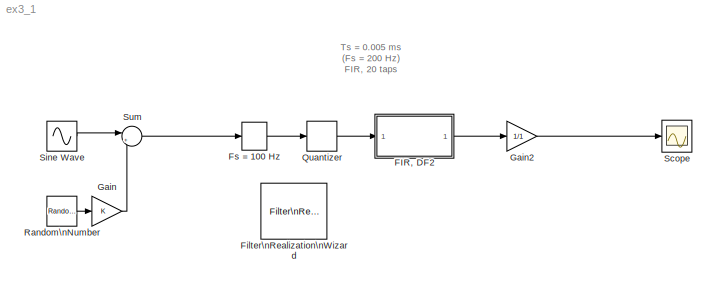
MODEL ex3_1
KIND model
CONFIG InitFcn = Ts = 0.1;	\ndisp(['Setting sample time to ' num2str(Ts) ' seconds'])	\ndisp('To change this, go to: File -> Model Properties -> Callbacks')	\ndisp('and change the Model initialization function')
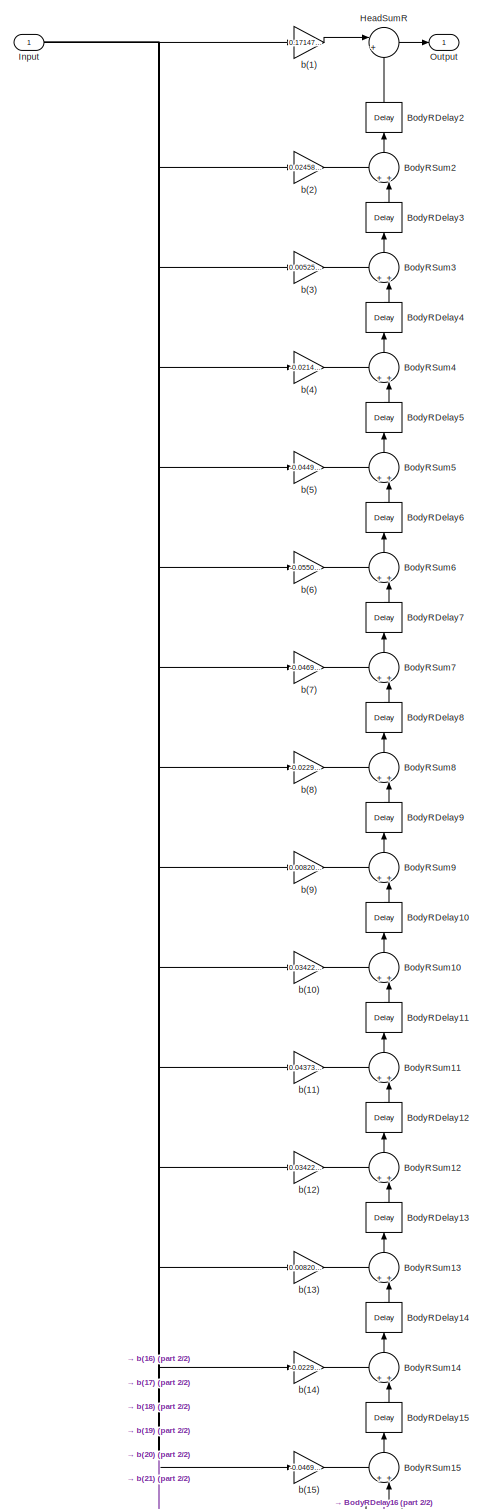
[diagram: FIR, DF2 - part 1/2, full width, middle band]
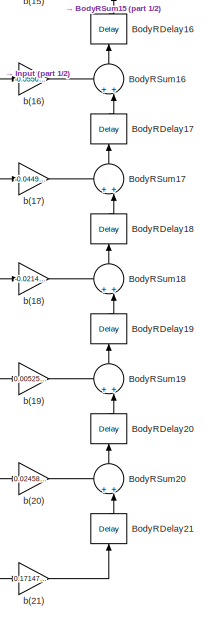
[diagram: FIR, DF2 - part 2/2, bottom right region]
BLOCK [SubSystem] FIR, DF2
  Ports = [1, 1]
  RequestExecContextInheritance = off
  SID = 1
  Tag = FilterWizardSubSystem
BLOCK [Reference] FIR, DF2/BodyRDelay10  REF=dspsigops/Delay
  Ports = [1, 1]
  SID = 3
  SourceBlock = dspsigops/Delay
  SourceProductBaseCode = DS
  SourceProductName = DSP System Toolbox
  SourceType = Delay
  delay = 1
  dif_ic_for_ch = off
  dif_ic_for_dly = off
  dly_unit = Samples
  ic = 0
  ic_detail = off
  reset_popup = None
BLOCK [Reference] FIR, DF2/BodyRDelay11  REF=dspsigops/Delay
  Ports = [1, 1]
  SID = 4
  SourceBlock = dspsigops/Delay
  SourceProductBaseCode = DS
  SourceProductName = DSP System Toolbox
  SourceType = Delay
  delay = 1
  dif_ic_for_ch = off
  dif_ic_for_dly = off
  dly_unit = Samples
  ic = 0
  ic_detail = off
  reset_popup = None
BLOCK [Reference] FIR, DF2/BodyRDelay12  REF=dspsigops/Delay
  Ports = [1, 1]
  SID = 5
  SourceBlock = dspsigops/Delay
  SourceProductBaseCode = DS
  SourceProductName = DSP System Toolbox
  SourceType = Delay
  delay = 1
  dif_ic_for_ch = off
  dif_ic_for_dly = off
  dly_unit = Samples
  ic = 0
  ic_detail = off
  reset_popup = None
BLOCK [Reference] FIR, DF2/BodyRDelay13  REF=dspsigops/Delay
  Ports = [1, 1]
  SID = 6
  SourceBlock = dspsigops/Delay
  SourceProductBaseCode = DS
  SourceProductName = DSP System Toolbox
  SourceType = Delay
  delay = 1
  dif_ic_for_ch = off
  dif_ic_for_dly = off
  dly_unit = Samples
  ic = 0
  ic_detail = off
  reset_popup = None
BLOCK [Reference] FIR, DF2/BodyRDelay14  REF=dspsigops/Delay
  Ports = [1, 1]
  SID = 7
  SourceBlock = dspsigops/Delay
  SourceProductBaseCode = DS
  SourceProductName = DSP System Toolbox
  SourceType = Delay
  delay = 1
  dif_ic_for_ch = off
  dif_ic_for_dly = off
  dly_unit = Samples
  ic = 0
  ic_detail = off
  reset_popup = None
BLOCK [Reference] FIR, DF2/BodyRDelay15  REF=dspsigops/Delay
  Ports = [1, 1]
  SID = 8
  SourceBlock = dspsigops/Delay
  SourceProductBaseCode = DS
  SourceProductName = DSP System Toolbox
  SourceType = Delay
  delay = 1
  dif_ic_for_ch = off
  dif_ic_for_dly = off
  dly_unit = Samples
  ic = 0
  ic_detail = off
  reset_popup = None
BLOCK [Reference] FIR, DF2/BodyRDelay16  REF=dspsigops/Delay
  Ports = [1, 1]
  SID = 9
  SourceBlock = dspsigops/Delay
  SourceProductBaseCode = DS
  SourceProductName = DSP System Toolbox
  SourceType = Delay
  delay = 1
  dif_ic_for_ch = off
  dif_ic_for_dly = off
  dly_unit = Samples
  ic = 0
  ic_detail = off
  reset_popup = None
BLOCK [Reference] FIR, DF2/BodyRDelay17  REF=dspsigops/Delay
  Ports = [1, 1]
  SID = 10
  SourceBlock = dspsigops/Delay
  SourceProductBaseCode = DS
  SourceProductName = DSP System Toolbox
  SourceType = Delay
  delay = 1
  dif_ic_for_ch = off
  dif_ic_for_dly = off
  dly_unit = Samples
  ic = 0
  ic_detail = off
  reset_popup = None
BLOCK [Reference] FIR, DF2/BodyRDelay18  REF=dspsigops/Delay
  Ports = [1, 1]
  SID = 11
  SourceBlock = dspsigops/Delay
  SourceProductBaseCode = DS
  SourceProductName = DSP System Toolbox
  SourceType = Delay
  delay = 1
  dif_ic_for_ch = off
  dif_ic_for_dly = off
  dly_unit = Samples
  ic = 0
  ic_detail = off
  reset_popup = None
BLOCK [Reference] FIR, DF2/BodyRDelay19  REF=dspsigops/Delay
  Ports = [1, 1]
  SID = 12
  SourceBlock = dspsigops/Delay
  SourceProductBaseCode = DS
  SourceProductName = DSP System Toolbox
  SourceType = Delay
  delay = 1
  dif_ic_for_ch = off
  dif_ic_for_dly = off
  dly_unit = Samples
  ic = 0
  ic_detail = off
  reset_popup = None
BLOCK [Reference] FIR, DF2/BodyRDelay2  REF=dspsigops/Delay
  Ports = [1, 1]
  SID = 13
  SourceBlock = dspsigops/Delay
  SourceProductBaseCode = DS
  SourceProductName = DSP System Toolbox
  SourceType = Delay
  delay = 1
  dif_ic_for_ch = off
  dif_ic_for_dly = off
  dly_unit = Samples
  ic = 0
  ic_detail = off
  reset_popup = None
BLOCK [Reference] FIR, DF2/BodyRDelay20  REF=dspsigops/Delay
  Ports = [1, 1]
  SID = 14
  SourceBlock = dspsigops/Delay
  SourceProductBaseCode = DS
  SourceProductName = DSP System Toolbox
  SourceType = Delay
  delay = 1
  dif_ic_for_ch = off
  dif_ic_for_dly = off
  dly_unit = Samples
  ic = 0
  ic_detail = off
  reset_popup = None
BLOCK [Reference] FIR, DF2/BodyRDelay21  REF=dspsigops/Delay
  Ports = [1, 1]
  SID = 15
  SourceBlock = dspsigops/Delay
  SourceProductBaseCode = DS
  SourceProductName = DSP System Toolbox
  SourceType = Delay
  delay = 1
  dif_ic_for_ch = off
  dif_ic_for_dly = off
  dly_unit = Samples
  ic = 0
  ic_detail = off
  reset_popup = None
BLOCK [Reference] FIR, DF2/BodyRDelay3  REF=dspsigops/Delay
  Ports = [1, 1]
  SID = 16
  SourceBlock = dspsigops/Delay
  SourceProductBaseCode = DS
  SourceProductName = DSP System Toolbox
  SourceType = Delay
  delay = 1
  dif_ic_for_ch = off
  dif_ic_for_dly = off
  dly_unit = Samples
  ic = 0
  ic_detail = off
  reset_popup = None
BLOCK [Reference] FIR, DF2/BodyRDelay4  REF=dspsigops/Delay
  Ports = [1, 1]
  SID = 17
  SourceBlock = dspsigops/Delay
  SourceProductBaseCode = DS
  SourceProductName = DSP System Toolbox
  SourceType = Delay
  delay = 1
  dif_ic_for_ch = off
  dif_ic_for_dly = off
  dly_unit = Samples
  ic = 0
  ic_detail = off
  reset_popup = None
BLOCK [Reference] FIR, DF2/BodyRDelay5  REF=dspsigops/Delay
  Ports = [1, 1]
  SID = 18
  SourceBlock = dspsigops/Delay
  SourceProductBaseCode = DS
  SourceProductName = DSP System Toolbox
  SourceType = Delay
  delay = 1
  dif_ic_for_ch = off
  dif_ic_for_dly = off
  dly_unit = Samples
  ic = 0
  ic_detail = off
  reset_popup = None
BLOCK [Reference] FIR, DF2/BodyRDelay6  REF=dspsigops/Delay
  Ports = [1, 1]
  SID = 19
  SourceBlock = dspsigops/Delay
  SourceProductBaseCode = DS
  SourceProductName = DSP System Toolbox
  SourceType = Delay
  delay = 1
  dif_ic_for_ch = off
  dif_ic_for_dly = off
  dly_unit = Samples
  ic = 0
  ic_detail = off
  reset_popup = None
BLOCK [Reference] FIR, DF2/BodyRDelay7  REF=dspsigops/Delay
  Ports = [1, 1]
  SID = 20
  SourceBlock = dspsigops/Delay
  SourceProductBaseCode = DS
  SourceProductName = DSP System Toolbox
  SourceType = Delay
  delay = 1
  dif_ic_for_ch = off
  dif_ic_for_dly = off
  dly_unit = Samples
  ic = 0
  ic_detail = off
  reset_popup = None
BLOCK [Reference] FIR, DF2/BodyRDelay8  REF=dspsigops/Delay
  Ports = [1, 1]
  SID = 21
  SourceBlock = dspsigops/Delay
  SourceProductBaseCode = DS
  SourceProductName = DSP System Toolbox
  SourceType = Delay
  delay = 1
  dif_ic_for_ch = off
  dif_ic_for_dly = off
  dly_unit = Samples
  ic = 0
  ic_detail = off
  reset_popup = None
BLOCK [Reference] FIR, DF2/BodyRDelay9  REF=dspsigops/Delay
  Ports = [1, 1]
  SID = 22
  SourceBlock = dspsigops/Delay
  SourceProductBaseCode = DS
  SourceProductName = DSP System Toolbox
  SourceType = Delay
  delay = 1
  dif_ic_for_ch = off
  dif_ic_for_dly = off
  dly_unit = Samples
  ic = 0
  ic_detail = off
  reset_popup = None
BLOCK [Sum] FIR, DF2/BodyRSum10
  IconShape = round
  Inputs = ++|
  Ports = [2, 1]
  SID = 23
BLOCK [Sum] FIR, DF2/BodyRSum11
  IconShape = round
  Inputs = ++|
  Ports = [2, 1]
  SID = 24
BLOCK [Sum] FIR, DF2/BodyRSum12
  IconShape = round
  Inputs = ++|
  Ports = [2, 1]
  SID = 25
BLOCK [Sum] FIR, DF2/BodyRSum13
  IconShape = round
  Inputs = ++|
  Ports = [2, 1]
  SID = 26
BLOCK [Sum] FIR, DF2/BodyRSum14
  IconShape = round
  Inputs = ++|
  Ports = [2, 1]
  SID = 27
BLOCK [Sum] FIR, DF2/BodyRSum15
  IconShape = round
  Inputs = ++|
  Ports = [2, 1]
  SID = 28
BLOCK [Sum] FIR, DF2/BodyRSum16
  IconShape = round
  Inputs = ++|
  Ports = [2, 1]
  SID = 29
BLOCK [Sum] FIR, DF2/BodyRSum17
  IconShape = round
  Inputs = ++|
  Ports = [2, 1]
  SID = 30
BLOCK [Sum] FIR, DF2/BodyRSum18
  IconShape = round
  Inputs = ++|
  Ports = [2, 1]
  SID = 31
BLOCK [Sum] FIR, DF2/BodyRSum19
  IconShape = round
  Inputs = ++|
  Ports = [2, 1]
  SID = 32
BLOCK [Sum] FIR, DF2/BodyRSum2
  IconShape = round
  Inputs = ++|
  Ports = [2, 1]
  SID = 33
BLOCK [Sum] FIR, DF2/BodyRSum20
  IconShape = round
  Inputs = ++|
  Ports = [2, 1]
  SID = 34
BLOCK [Sum] FIR, DF2/BodyRSum3
  IconShape = round
  Inputs = ++|
  Ports = [2, 1]
  SID = 35
BLOCK [Sum] FIR, DF2/BodyRSum4
  IconShape = round
  Inputs = ++|
  Ports = [2, 1]
  SID = 36
BLOCK [Sum] FIR, DF2/BodyRSum5
  IconShape = round
  Inputs = ++|
  Ports = [2, 1]
  SID = 37
BLOCK [Sum] FIR, DF2/BodyRSum6
  IconShape = round
  Inputs = ++|
  Ports = [2, 1]
  SID = 38
BLOCK [Sum] FIR, DF2/BodyRSum7
  IconShape = round
  Inputs = ++|
  Ports = [2, 1]
  SID = 39
BLOCK [Sum] FIR, DF2/BodyRSum8
  IconShape = round
  Inputs = ++|
  Ports = [2, 1]
  SID = 40
BLOCK [Sum] FIR, DF2/BodyRSum9
  IconShape = round
  Inputs = ++|
  Ports = [2, 1]
  SID = 41
BLOCK [Sum] FIR, DF2/HeadSumR
  IconShape = round
  Inputs = |++
  Ports = [2, 1]
  SID = 42
BLOCK [Inport] FIR, DF2/Input
  IconDisplay = Port number
  SID = 2
BLOCK [Outport] FIR, DF2/Output
  IconDisplay = Port number
  SID = 64
BLOCK [Gain] FIR, DF2/b(1)
  Gain = 0.17147471091149158
  SID = 43
BLOCK [Gain] FIR, DF2/b(10)
  Gain = 0.034222625873135647
  SID = 44
BLOCK [Gain] FIR, DF2/b(11)
  Gain = 0.043738017679734252
  SID = 45
BLOCK [Gain] FIR, DF2/b(12)
  Gain = 0.034222625873135647
  SID = 46
BLOCK [Gain] FIR, DF2/b(13)
  Gain = 0.0082055693668778261
  SID = 47
BLOCK [Gain] FIR, DF2/b(14)
  Gain = -0.022908250621133351
  SID = 48
BLOCK [Gain] FIR, DF2/b(15)
  Gain = -0.046940146015028897
  SID = 49
BLOCK [Gain] FIR, DF2/b(16)
  Gain = -0.055052008980433026
  SID = 50
BLOCK [Gain] FIR, DF2/b(17)
  Gain = -0.044926451788650353
  SID = 51
BLOCK [Gain] FIR, DF2/b(18)
  Gain = -0.021488449037358894
  SID = 52
BLOCK [Gain] FIR, DF2/b(19)
  Gain = 0.005251631361332978
  SID = 53
BLOCK [Gain] FIR, DF2/b(2)
  Gain = 0.024584852375515401
  SID = 54
BLOCK [Gain] FIR, DF2/b(20)
  Gain = 0.024584852375515401
  SID = 55
BLOCK [Gain] FIR, DF2/b(21)
  Gain = 0.17147471091149158
  SID = 56
BLOCK [Gain] FIR, DF2/b(3)
  Gain = 0.005251631361332978
  SID = 57
BLOCK [Gain] FIR, DF2/b(4)
  Gain = -0.021488449037358894
  SID = 58
BLOCK [Gain] FIR, DF2/b(5)
  Gain = -0.044926451788650353
  SID = 59
BLOCK [Gain] FIR, DF2/b(6)
  Gain = -0.055052008980433026
  SID = 60
BLOCK [Gain] FIR, DF2/b(7)
  Gain = -0.046940146015028897
  SID = 61
BLOCK [Gain] FIR, DF2/b(8)
  Gain = -0.022908250621133351
  SID = 62
BLOCK [Gain] FIR, DF2/b(9)
  Gain = 0.0082055693668778261
  SID = 63
BLOCK [Reference] Filter\nRealization\nWizard  REF=dsparch4/Filter\nRealization\nWizard
  FunctionWithSeparateData = off
  Ports = []
  RTWMemSecDataConstants = Inherit from model
  RTWMemSecDataInternal = Inherit from model
  RTWMemSecDataParameters = Inherit from model
  RTWMemSecFuncExecute = Inherit from model
  RTWMemSecFuncInitTerm = Inherit from model
  SID = 65
  ShowPortLabels = FromPortIcon
  SourceBlock = dsparch4/Filter\nRealization\nWizard
  SourceProductBaseCode = DS
  SourceProductName = DSP System Toolbox
  SourceType = Filter Realization Wizard
  SystemSampleTime = -1
BLOCK [ZeroOrderHold] Fs = 100 Hz
  SID = 66
  SampleTime = 0.01
BLOCK [Gain] Gain
  SID = 67
BLOCK [Gain] Gain2
  Gain = 1/1
  SID = 68
BLOCK [Quantizer] Quantizer
  LinearizeAsGain = off
  QuantizationInterval = 2/(2^6-1)
  SID = 69
BLOCK [RandomNumber] Random\nNumber
  SID = 70
  SampleTime = 0
  Variance = 1e-6
BLOCK [Scope] Scope
  Floating = off
  NumInputPorts = 1
  Ports = [1]
  SID = 71
  ScopeSpecificationString = C++SS(StrPVP('Location','[847, 449, 1201, 707]'),StrPVP('Open','off'),MxPVP('AxesTitles',54,'struct(''axes1'',''%<SignalLabel>'')'),StrPVP('TimeRange','1'),StrPVP('YMin','-1.5'),StrPVP('YMax','1.5'),StrPVP('SaveToWorkspace','on'),StrPVP('SaveName','y1'),StrPVP('DataFormat','StructureWithTime'),StrPVP('LimitDataPoints','on'),StrPVP('Decimation','1'),StrPVP('BlockParamSampleInput','off'))
BLOCK [Sin] Sine Wave
  Frequency = 2*pi*20
  Ports = [0, 1]
  SID = 72
  SampleTime = 0
BLOCK [Sum] Sum
  IconShape = round
  InputSameDT = off
  Inputs = |++
  OutDataTypeStr = Inherit: Inherit via internal rule
  Ports = [2, 1]
  SID = 73
ANNOTATION (root): Ts = 0.005 ms\n(Fs = 200 Hz)\nFIR, 20 taps
LINE FIR, DF2/BodyRDelay10:1 -> FIR, DF2/BodyRSum9:2
LINE FIR, DF2/BodyRDelay11:1 -> FIR, DF2/BodyRSum10:2
LINE FIR, DF2/BodyRDelay12:1 -> FIR, DF2/BodyRSum11:2
LINE FIR, DF2/BodyRDelay13:1 -> FIR, DF2/BodyRSum12:2
LINE FIR, DF2/BodyRDelay14:1 -> FIR, DF2/BodyRSum13:2
LINE FIR, DF2/BodyRDelay15:1 -> FIR, DF2/BodyRSum14:2
LINE FIR, DF2/BodyRDelay16:1 -> FIR, DF2/BodyRSum15:2
LINE FIR, DF2/BodyRDelay17:1 -> FIR, DF2/BodyRSum16:2
LINE FIR, DF2/BodyRDelay18:1 -> FIR, DF2/BodyRSum17:2
LINE FIR, DF2/BodyRDelay19:1 -> FIR, DF2/BodyRSum18:2
LINE FIR, DF2/BodyRDelay20:1 -> FIR, DF2/BodyRSum19:2
LINE FIR, DF2/BodyRDelay21:1 -> FIR, DF2/BodyRSum20:2
LINE FIR, DF2/BodyRDelay2:1 -> FIR, DF2/HeadSumR:2
LINE FIR, DF2/BodyRDelay3:1 -> FIR, DF2/BodyRSum2:2
LINE FIR, DF2/BodyRDelay4:1 -> FIR, DF2/BodyRSum3:2
LINE FIR, DF2/BodyRDelay5:1 -> FIR, DF2/BodyRSum4:2
LINE FIR, DF2/BodyRDelay6:1 -> FIR, DF2/BodyRSum5:2
LINE FIR, DF2/BodyRDelay7:1 -> FIR, DF2/BodyRSum6:2
LINE FIR, DF2/BodyRDelay8:1 -> FIR, DF2/BodyRSum7:2
LINE FIR, DF2/BodyRDelay9:1 -> FIR, DF2/BodyRSum8:2
LINE FIR, DF2/BodyRSum10:1 -> FIR, DF2/BodyRDelay10:1
LINE FIR, DF2/BodyRSum11:1 -> FIR, DF2/BodyRDelay11:1
LINE FIR, DF2/BodyRSum12:1 -> FIR, DF2/BodyRDelay12:1
LINE FIR, DF2/BodyRSum13:1 -> FIR, DF2/BodyRDelay13:1
LINE FIR, DF2/BodyRSum14:1 -> FIR, DF2/BodyRDelay14:1
LINE FIR, DF2/BodyRSum15:1 -> FIR, DF2/BodyRDelay15:1
LINE FIR, DF2/BodyRSum16:1 -> FIR, DF2/BodyRDelay16:1
LINE FIR, DF2/BodyRSum17:1 -> FIR, DF2/BodyRDelay17:1
LINE FIR, DF2/BodyRSum18:1 -> FIR, DF2/BodyRDelay18:1
LINE FIR, DF2/BodyRSum19:1 -> FIR, DF2/BodyRDelay19:1
LINE FIR, DF2/BodyRSum20:1 -> FIR, DF2/BodyRDelay20:1
LINE FIR, DF2/BodyRSum2:1 -> FIR, DF2/BodyRDelay2:1
LINE FIR, DF2/BodyRSum3:1 -> FIR, DF2/BodyRDelay3:1
LINE FIR, DF2/BodyRSum4:1 -> FIR, DF2/BodyRDelay4:1
LINE FIR, DF2/BodyRSum5:1 -> FIR, DF2/BodyRDelay5:1
LINE FIR, DF2/BodyRSum6:1 -> FIR, DF2/BodyRDelay6:1
LINE FIR, DF2/BodyRSum7:1 -> FIR, DF2/BodyRDelay7:1
LINE FIR, DF2/BodyRSum8:1 -> FIR, DF2/BodyRDelay8:1
LINE FIR, DF2/BodyRSum9:1 -> FIR, DF2/BodyRDelay9:1
LINE FIR, DF2/HeadSumR:1 -> FIR, DF2/Output:1
NET FIR, DF2/Input:1 -> FIR, DF2/b(1):1, FIR, DF2/b(10):1, FIR, DF2/b(11):1, FIR, DF2/b(12):1, FIR, DF2/b(13):1, FIR, DF2/b(14):1, FIR, DF2/b(15):1, FIR, DF2/b(16):1, FIR, DF2/b(17):1, FIR, DF2/b(18):1, FIR, DF2/b(19):1, FIR, DF2/b(2):1, FIR, DF2/b(20):1, FIR, DF2/b(21):1, FIR, DF2/b(3):1, FIR, DF2/b(4):1, FIR, DF2/b(5):1, FIR, DF2/b(6):1, FIR, DF2/b(7):1, FIR, DF2/b(8):1, FIR, DF2/b(9):1
LINE FIR, DF2/b(1):1 -> FIR, DF2/HeadSumR:1
LINE FIR, DF2/b(10):1 -> FIR, DF2/BodyRSum10:1
LINE FIR, DF2/b(11):1 -> FIR, DF2/BodyRSum11:1
LINE FIR, DF2/b(12):1 -> FIR, DF2/BodyRSum12:1
LINE FIR, DF2/b(13):1 -> FIR, DF2/BodyRSum13:1
LINE FIR, DF2/b(14):1 -> FIR, DF2/BodyRSum14:1
LINE FIR, DF2/b(15):1 -> FIR, DF2/BodyRSum15:1
LINE FIR, DF2/b(16):1 -> FIR, DF2/BodyRSum16:1
LINE FIR, DF2/b(17):1 -> FIR, DF2/BodyRSum17:1
LINE FIR, DF2/b(18):1 -> FIR, DF2/BodyRSum18:1
LINE FIR, DF2/b(19):1 -> FIR, DF2/BodyRSum19:1
LINE FIR, DF2/b(2):1 -> FIR, DF2/BodyRSum2:1
LINE FIR, DF2/b(20):1 -> FIR, DF2/BodyRSum20:1
LINE FIR, DF2/b(21):1 -> FIR, DF2/BodyRDelay21:1
LINE FIR, DF2/b(3):1 -> FIR, DF2/BodyRSum3:1
LINE FIR, DF2/b(4):1 -> FIR, DF2/BodyRSum4:1
LINE FIR, DF2/b(5):1 -> FIR, DF2/BodyRSum5:1
LINE FIR, DF2/b(6):1 -> FIR, DF2/BodyRSum6:1
LINE FIR, DF2/b(7):1 -> FIR, DF2/BodyRSum7:1
LINE FIR, DF2/b(8):1 -> FIR, DF2/BodyRSum8:1
LINE FIR, DF2/b(9):1 -> FIR, DF2/BodyRSum9:1
LINE FIR, DF2:1 -> Gain2:1
LINE Fs = 100 Hz:1 -> Quantizer:1
LINE Gain2:1 -> Scope:1
LINE Gain:1 -> Sum:2
LINE Quantizer:1 -> FIR, DF2:1
LINE Random\nNumber:1 -> Gain:1
LINE Sine Wave:1 -> Sum:1
LINE Sum:1 -> Fs = 100 Hz:1
note: NET lines group one-source signal fan-out (src -> all destinations, sorted); 1:1 wires keep LINE
